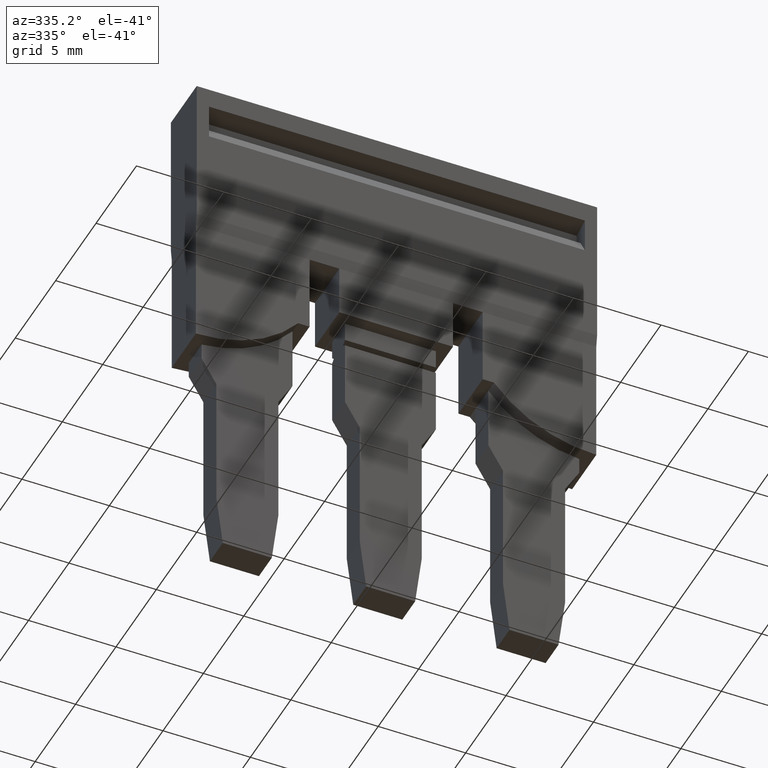
[diagram: clean part render]
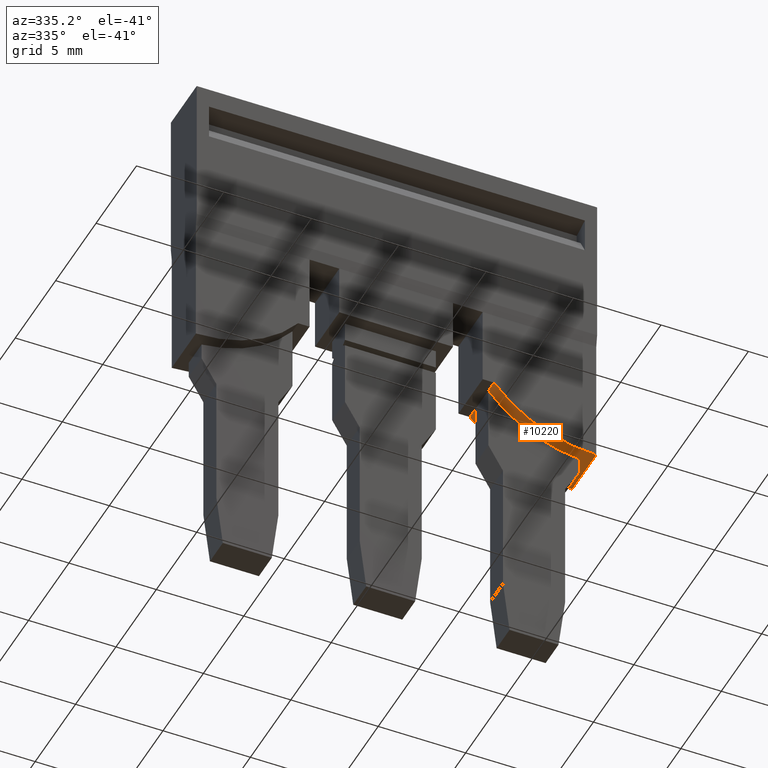
[diagram: same view with one face highlighted and labeled with its STEP entity id]
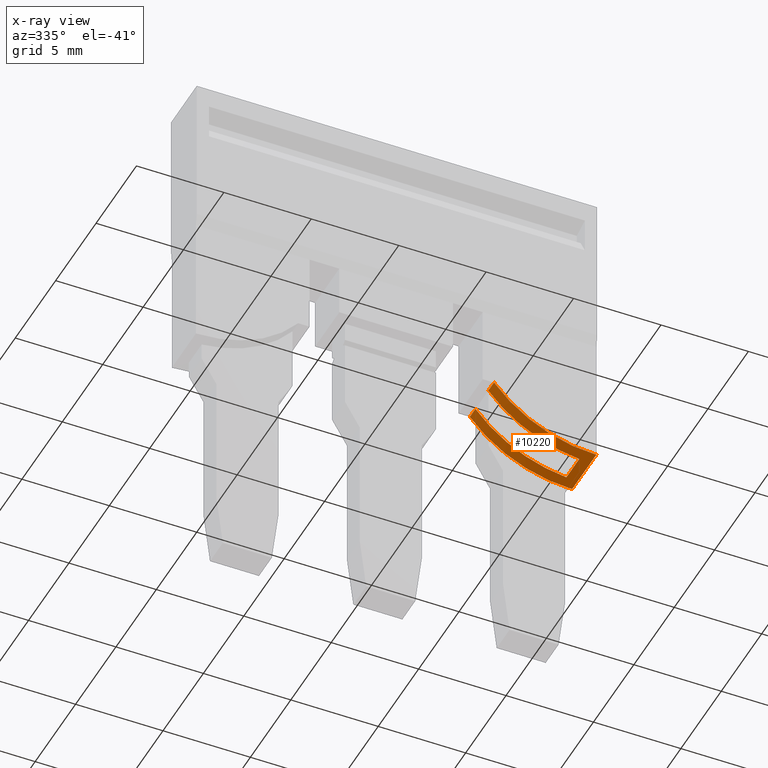
[diagram: x-ray of the same camera — body ghosted, the highlighted face saturated]
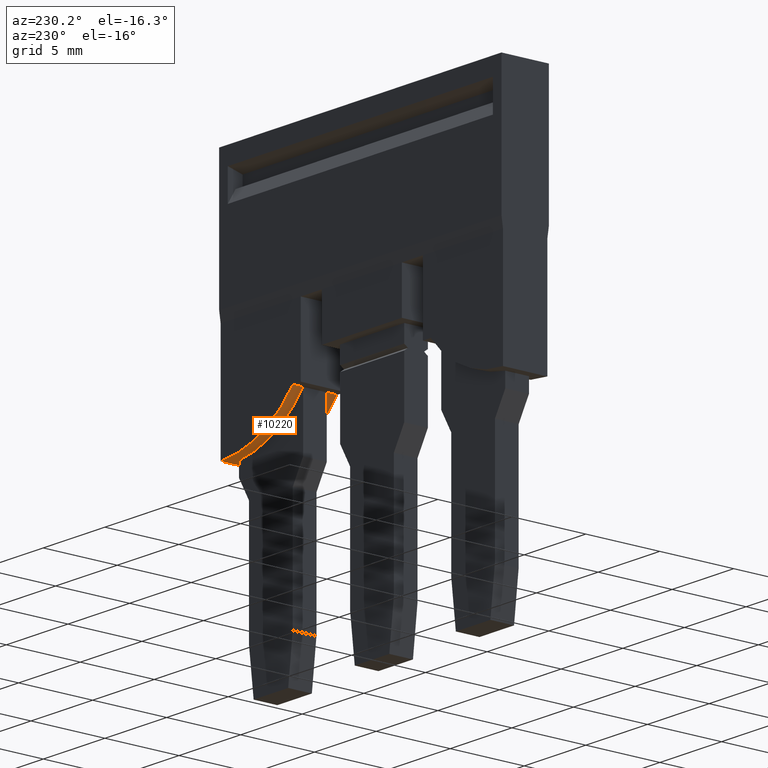
[diagram: same view with one face highlighted and labeled with its STEP entity id]
A machine part, auxiliary view. The second image highlights one B-rep face of the part: STEP entity #10220.
The next image is the same camera in x-ray: the body ghosted, the highlighted face saturated — about 0% of this face is hidden behind the body in this view.
A second angle (auxiliary view) of the same face is appended — the face is thin or edge-on in the first view.
In plain terms, the highlighted cylindrical surface (partial cylindrical patch) has radius 7.45 mm, axis along (0, -1, 0).
Its self-contained STEP definition (entity closure, byte-faithful):
#2530=CARTESIAN_POINT('',(4.98553886079779,-20.0808348559681,
49.6599999999954));
#2540=VERTEX_POINT('',#2530);
#2550=CARTESIAN_POINT('',(3.38553886079778,-20.0808348559681,
49.6599999999954));
#2560=VERTEX_POINT('',#2550);
#2590=CARTESIAN_POINT('',(3.38553886080736,-20.0808348559681,
49.6599999999999));
#2600=DIRECTION('',(1.,0.,3.08148791101958E-33));
#2610=VECTOR('',#2600,1.);
#2620=LINE('',#2590,#2610);
#2630=CARTESIAN_POINT('',(2.68553886079762,-20.0808348559681,
49.6599999999999));
#2640=VERTEX_POINT('',#2630);
#2650=EDGE_CURVE('',#2640,#2560,#2620,.T.);
#2870=CARTESIAN_POINT('',(5.68553886079762,-20.0808348559681,
49.6599999999999));
#2880=VERTEX_POINT('',#2870);
#2910=EDGE_CURVE('',#2540,#2880,#2620,.T.);
#3120=CARTESIAN_POINT('',(5.68553886079762,-22.9178098181019,
43.8099999999982));
#3130=VERTEX_POINT('',#3120);
#3180=CARTESIAN_POINT('',(5.68553886079762,-15.4678098181019,
43.8099999999982));
#3190=DIRECTION('',(1.,0.,3.08148791101958E-33));
#3200=DIRECTION('',(0.,1.,0.));
#3210=AXIS2_PLACEMENT_3D('',#3180,#3190,#3200);
#3220=CIRCLE('',#3210,7.45);
#3230=EDGE_CURVE('',#2880,#3130,#3220,.T.);
#3590=CARTESIAN_POINT('',(3.38553886079778,-22.8893999442139,
44.4599999999955));
#3600=VERTEX_POINT('',#3590);
#3630=CARTESIAN_POINT('',(3.38553886079778,-15.4678098181019,
43.8099999999982));
#3640=DIRECTION('',(1.,0.,3.08148791101958E-33));
#3650=DIRECTION('',(0.,1.,0.));
#3660=AXIS2_PLACEMENT_3D('',#3630,#3640,#3650);
#3670=CIRCLE('',#3660,7.45);
#3680=EDGE_CURVE('',#2560,#3600,#3670,.T.);
#9350=CARTESIAN_POINT('',(4.98553886079779,-22.8893999442139,
44.4599999999955));
#9360=VERTEX_POINT('',#9350);
#9390=CARTESIAN_POINT('',(3.38553886080736,-22.8893999442139,
44.4599999999955));
#9400=DIRECTION('',(1.,0.,3.08148791101958E-33));
#9410=VECTOR('',#9400,1.);
#9420=LINE('',#9390,#9410);
#9430=EDGE_CURVE('',#3600,#9360,#9420,.T.);
#9880=CARTESIAN_POINT('',(3.38553886080736,-15.4678098181019,
43.8099999999982));
#9890=DIRECTION('',(1.,0.,3.08148791101958E-33));
#9900=DIRECTION('',(0.,1.,0.));
#9910=AXIS2_PLACEMENT_3D('',#9880,#9890,#9900);
#9920=CYLINDRICAL_SURFACE('',#9910,7.45);
#9930=ORIENTED_EDGE('',*,*,#3230,.F.);
#9940=CARTESIAN_POINT('',(3.38553886080736,-22.9178098181019,
43.8099999999982));
#9950=DIRECTION('',(1.,0.,3.08148791101958E-33));
#9960=VECTOR('',#9950,1.);
#9970=LINE('',#9940,#9960);
#9980=CARTESIAN_POINT('',(2.68553886079762,-22.9178098181019,
43.8099999999982));
#9990=VERTEX_POINT('',#9980);
#10000=EDGE_CURVE('',#9990,#3130,#9970,.T.);
#10010=ORIENTED_EDGE('',*,*,#10000,.T.);
#10020=CARTESIAN_POINT('',(2.68553886079762,-15.4678098181019,
43.8099999999982));
#10030=DIRECTION('',(1.,0.,3.08148791101958E-33));
#10040=DIRECTION('',(0.,1.,0.));
#10050=AXIS2_PLACEMENT_3D('',#10020,#10030,#10040);
#10060=CIRCLE('',#10050,7.45);
#10070=EDGE_CURVE('',#2640,#9990,#10060,.T.);
#10080=ORIENTED_EDGE('',*,*,#10070,.T.);
#10090=ORIENTED_EDGE('',*,*,#2650,.F.);
#10100=ORIENTED_EDGE('',*,*,#3680,.F.);
#10110=ORIENTED_EDGE('',*,*,#9430,.F.);
#10120=CARTESIAN_POINT('',(4.98553886079779,-15.4678098181019,
43.8099999999982));
#10130=DIRECTION('',(1.,0.,3.08148791101958E-33));
#10140=DIRECTION('',(0.,1.,0.));
#10150=AXIS2_PLACEMENT_3D('',#10120,#10130,#10140);
#10160=CIRCLE('',#10150,7.45);
#10170=EDGE_CURVE('',#2540,#9360,#10160,.T.);
#10180=ORIENTED_EDGE('',*,*,#10170,.T.);
#10190=ORIENTED_EDGE('',*,*,#2910,.F.);
#10200=EDGE_LOOP('',(#10190,#10180,#10110,#10100,#10090,#10080,#10010,
#9930));
#10210=FACE_OUTER_BOUND('',#10200,.T.);
#10220=ADVANCED_FACE('',(#10210),#9920,.T.);